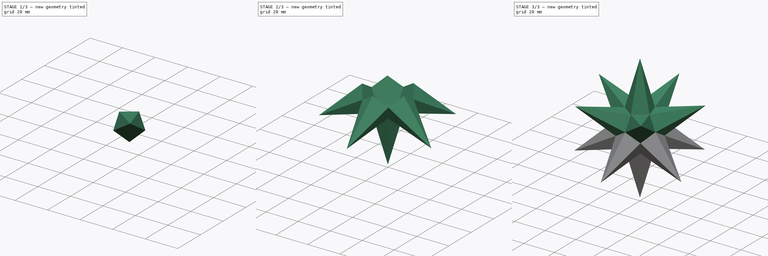
[diagram: build sequence overview — one tinted view per stage of 3, left to right]
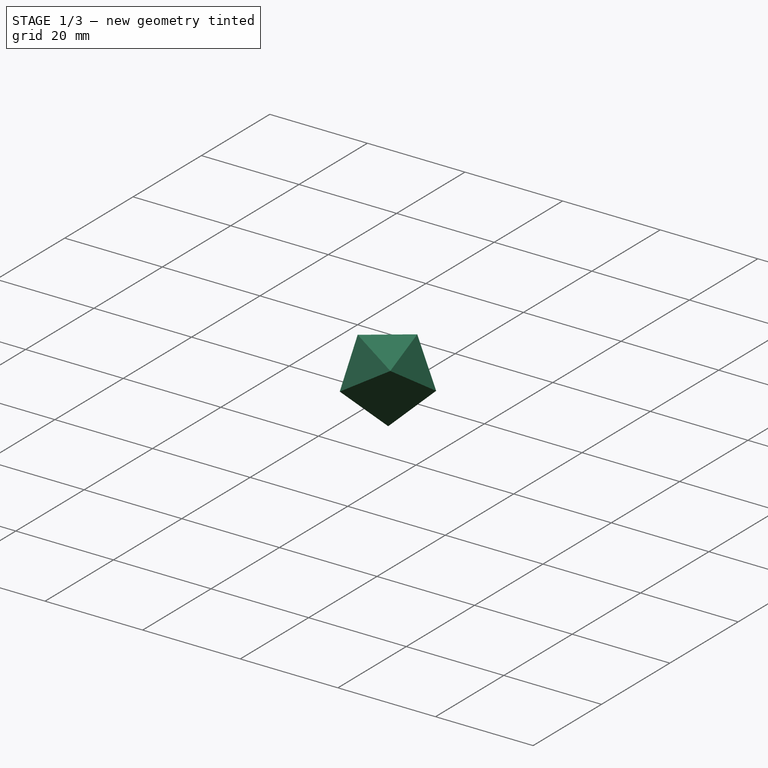
[diagram: stage 1 of 3 — iso view after this stage's code; geometry added in this stage tinted green]
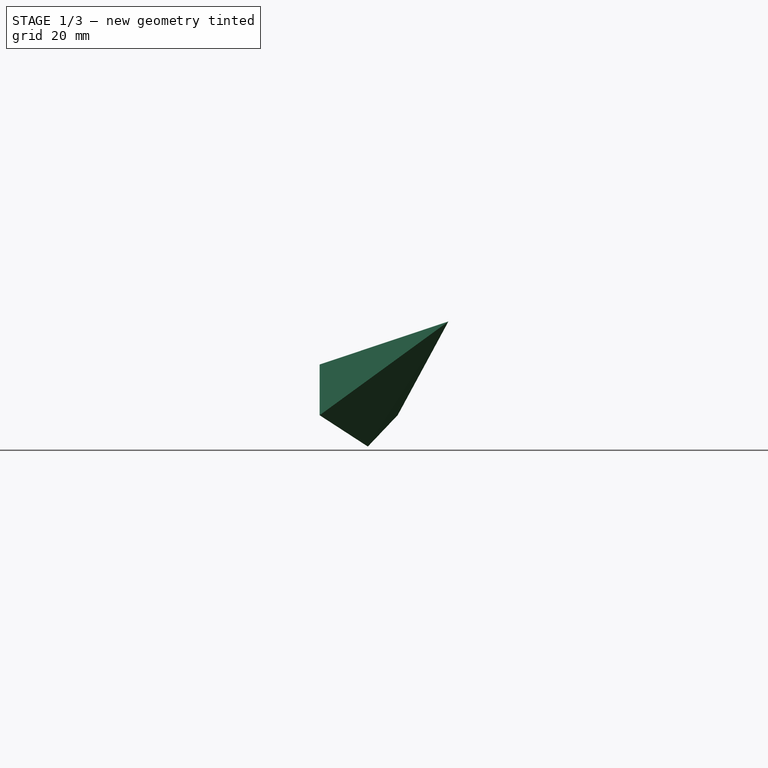
[diagram: stage 1 of 3 — front view after this stage's code; geometry added in this stage tinted green]
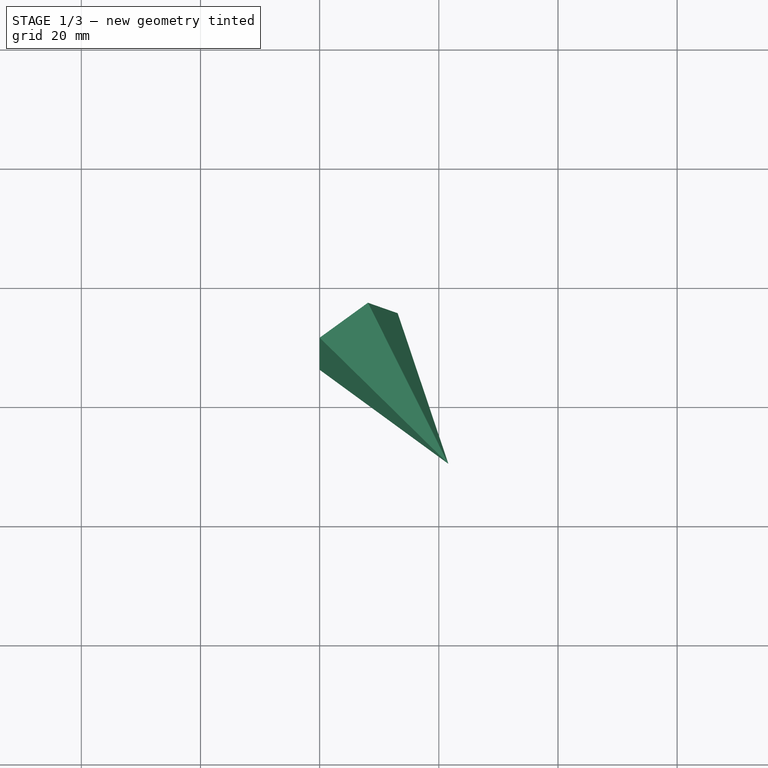
[diagram: stage 1 of 3 — top view after this stage's code; geometry added in this stage tinted green]
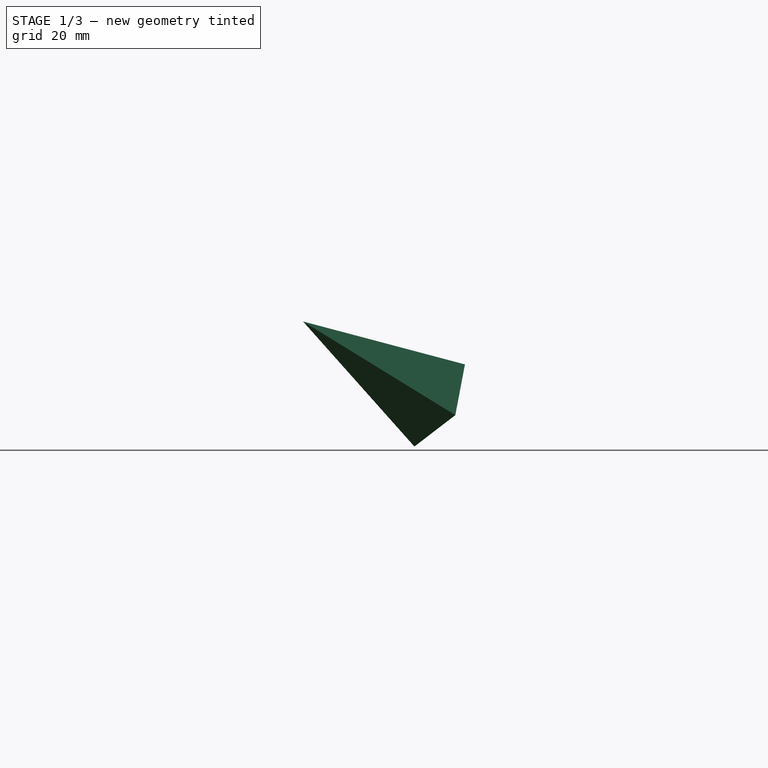
[diagram: stage 1 of 3 — right view after this stage's code; geometry added in this stage tinted green]
FCSTD DOCUMENT  (FreeCAD 0.18R13516 (Git))
Label: ESTRELA DODECAEDRA
License: All rights reserved
LicenseURL: http://en.wikipedia.org/wiki/All_rights_reserved
objects: Part::FeaturePython×4, Part::Compound×2, Sketcher::SketchObject×1, PartDesign::Body×1, Part::Vertex×1, Part::Loft×1
note: 10 computed .brp shape members not serialized (recipe doc carries the construction recipe); baked Part::Feature solids carry a one-line shape summary decoded from their .brp

FEATURE [Sketcher::SketchObject] Sketch
  MapMode = 5
  Support = -> [XY_Plane]
  sketch-geometry (6):
    g0: LineSegment StartX=0 StartY=8.50651 StartZ=0 EndX=-8.09017 EndY=2.62866 EndZ=0
    g1: LineSegment StartX=-8.09017 StartY=2.62866 StartZ=0 EndX=-5 EndY=-6.88191 EndZ=0
    g2: LineSegment StartX=-5 StartY=-6.88191 StartZ=0 EndX=5 EndY=-6.88191 EndZ=0
    g3: LineSegment StartX=5 StartY=-6.88191 StartZ=0 EndX=8.09017 EndY=2.62866 EndZ=0
    g4: LineSegment StartX=8.09017 StartY=2.62866 StartZ=0 EndX=0 EndY=8.50651 EndZ=0
    g5: Circle [constr] CenterX=0 CenterY=0 CenterZ=0 NormalX=0 NormalY=0 NormalZ=1 AngleXU=0 Radius=8.50651
  constraints (14):
    c: Coincident(g0,g1)
    c: Coincident(g1,g2)
    c: Coincident(g2,g3)
    c: Coincident(g3,g4)
    c: Coincident(g4,g0)
    c: Equal(g0, g1-g4) x4
    c: PointOnObject(g0,g5)
    c: PointOnObject(g1,g5)
    c: PointOnObject(g2,g5)
    c: PointOnObject(g3,g5)
    c: PointOnObject(g4,g5)
    c: Coincident(g5,g-1)
    c: PointOnObject(g4,g-2)
    c: DistanceX(g2,g2) = 10
FEATURE [PartDesign::Body] Body
  Group = -> [Sketch]
  Origin = -> Origin
FEATURE [Part::Vertex] Vertex
  AttacherType = Attacher::AttachEngine3D
  X = 0
  Y = 0
  Z = 30
FEATURE [Part::Loft] Loft
  Closed = false
  MaxDegree = 5
  Placement = pos=(-0.0138082,0.0190054,22.26) rot=(0,0,-1;1.88496rad)
  Ruled = true
  Sections = -> [Sketch,Vertex]
  Solid = true
FEATURE [Part::FeaturePython] Clone  label="Loft001"  # Draft clone (typed FeaturePython)
  AttacherType = Attacher::AttachEngine3D
  Fuse = false
  Objects = -> [Loft]
  Placement = pos=(5.85668,-8.06718,16.115) rot=(0.725413,-0.00108,0.688313;1.62424rad)
  Scale = (1,1,1)
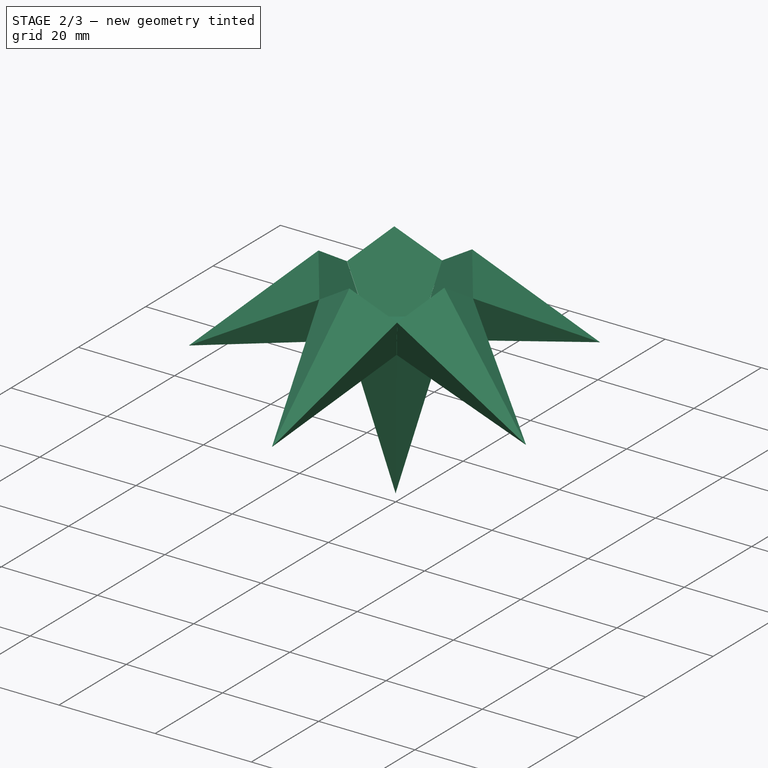
[diagram: stage 2 of 3 — iso view after this stage's code; geometry added in this stage tinted green]
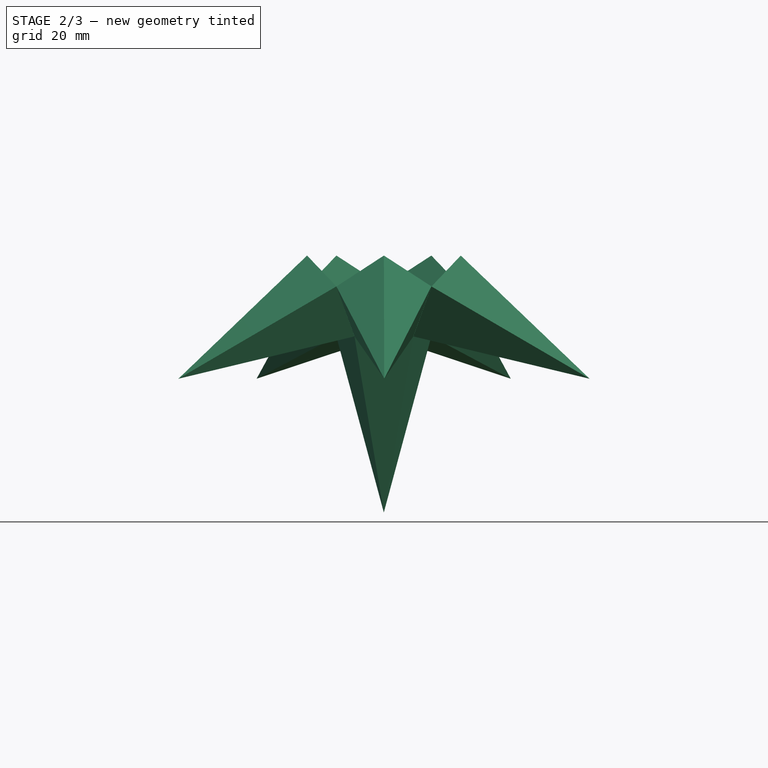
[diagram: stage 2 of 3 — front view after this stage's code; geometry added in this stage tinted green]
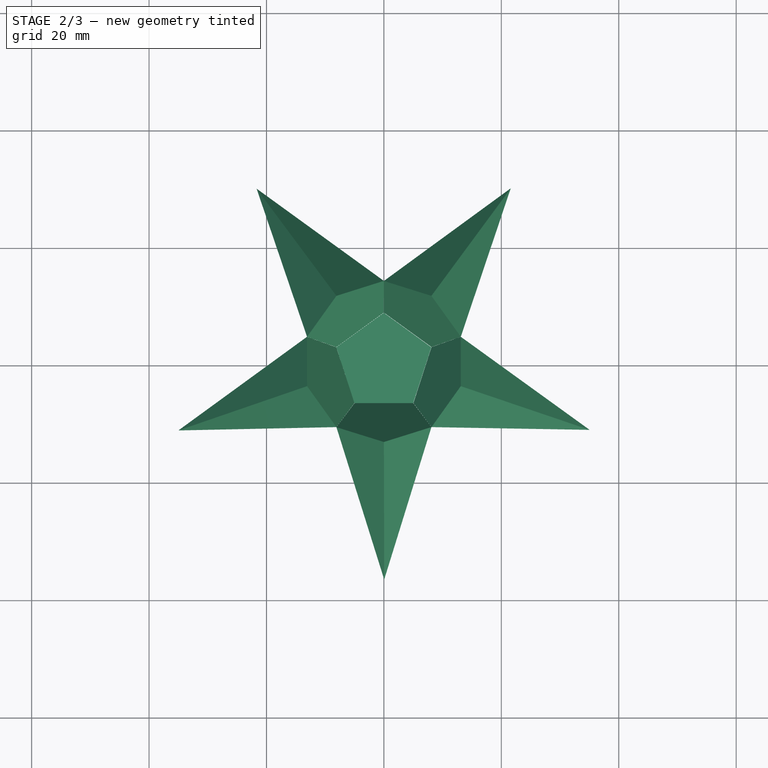
[diagram: stage 2 of 3 — top view after this stage's code; geometry added in this stage tinted green]
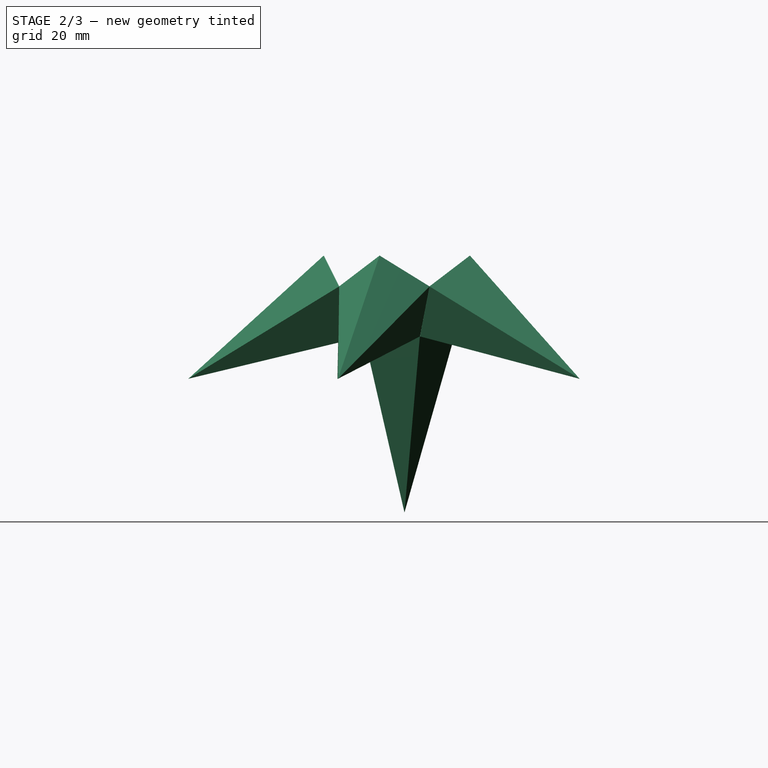
[diagram: stage 2 of 3 — right view after this stage's code; geometry added in this stage tinted green]
FEATURE [Part::FeaturePython] Array  # Draft array (typed FeaturePython)
  Angle = 360
  ArrayType = 1
  Axis = (0,0,1)
  Base = -> Clone
  Center = (0,0,0)
  Fuse = false
  IntervalAxis = (0,0,0)
  IntervalX = (1,0,0)
  IntervalY = (0,1,0)
  IntervalZ = (0,0,0)
  NumberPolar = 5
  NumberX = 2
  NumberY = 2
  NumberZ = 1
FEATURE [Part::Compound] Compound
  Links = -> [Loft,Array]
FEATURE [Part::FeaturePython] Clone001  label="Compound001"  # Draft clone (typed FeaturePython)
  AttacherType = Attacher::AttachEngine3D
  Fuse = false
  Objects = -> [Compound]
  Placement = pos=(0,0,22.3) rot=(-1,0,0;3.14159rad)
  Scale = (1,1,1)
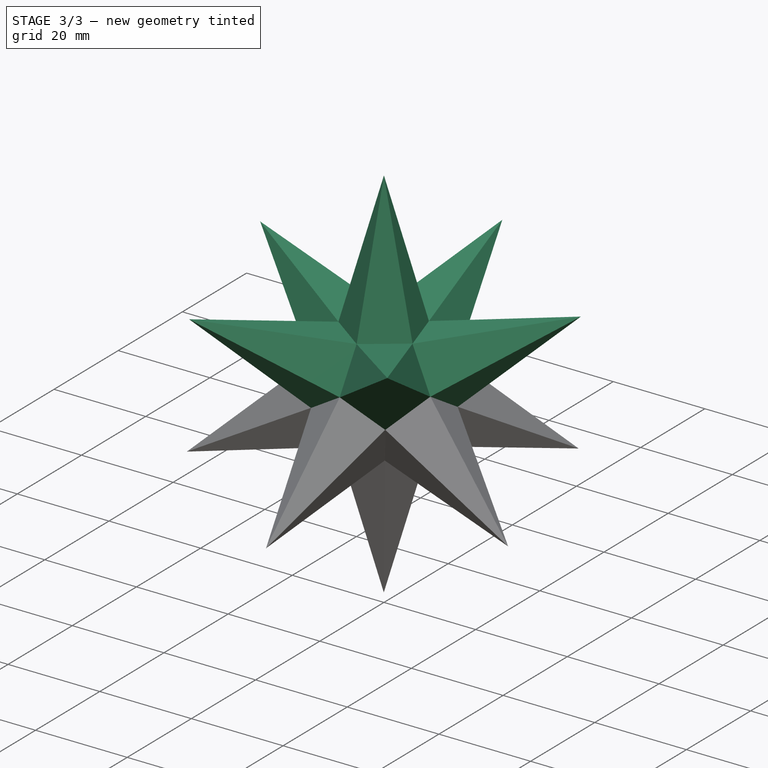
[diagram: stage 3 of 3 — iso view after this stage's code; geometry added in this stage tinted green]
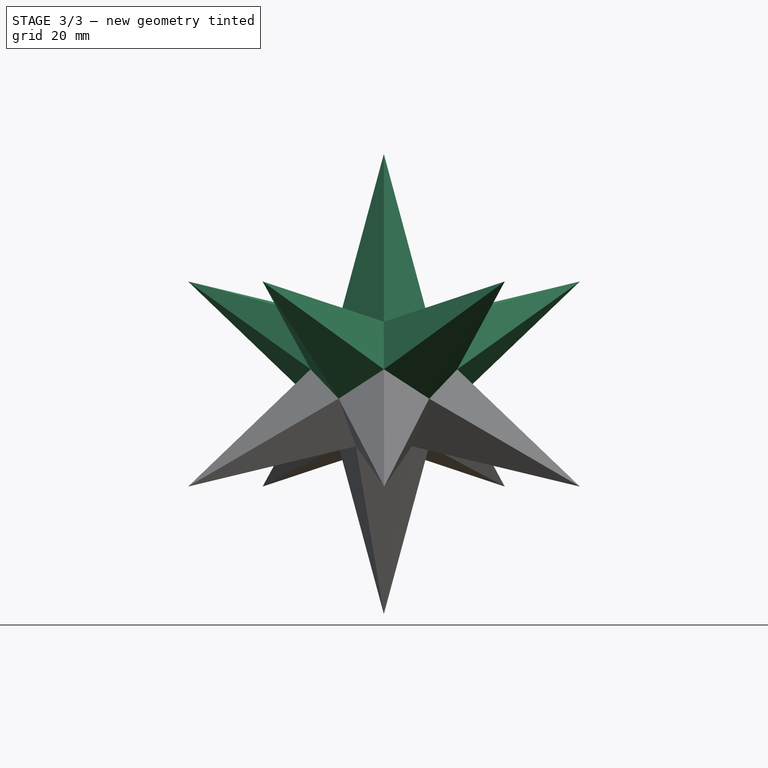
[diagram: stage 3 of 3 — front view after this stage's code; geometry added in this stage tinted green]
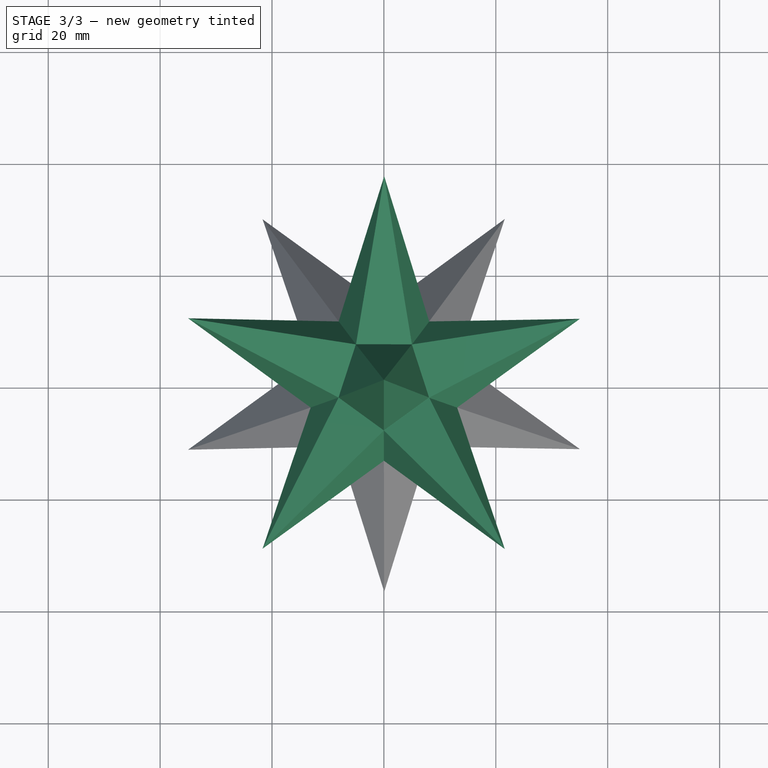
[diagram: stage 3 of 3 — top view after this stage's code; geometry added in this stage tinted green]
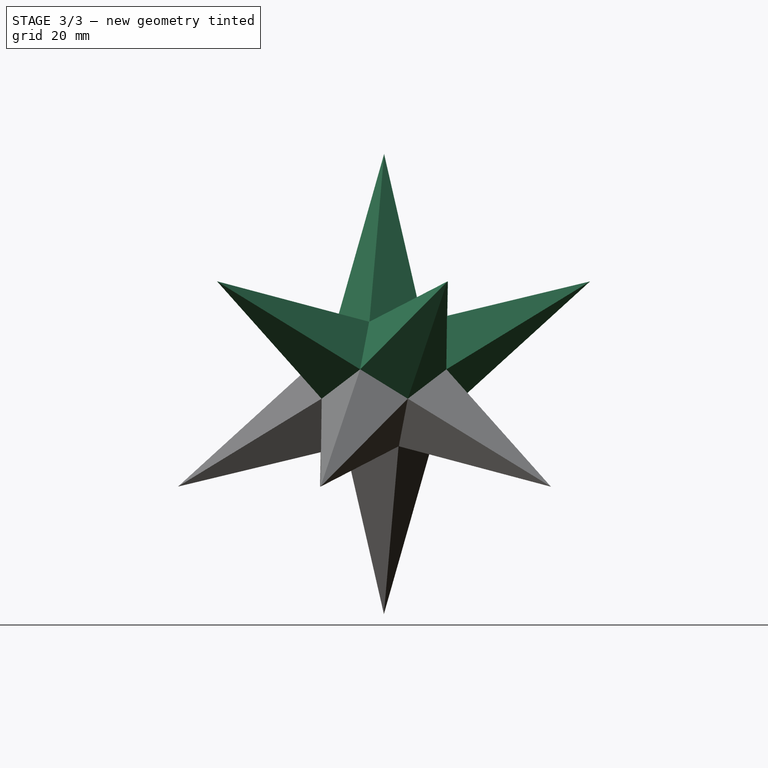
[diagram: stage 3 of 3 — right view after this stage's code; geometry added in this stage tinted green]
FEATURE [Part::FeaturePython] DODECAEDRO_R2_01  # a2plus imported part (geometry in sourceFile) (typed FeaturePython)
  fixedPosition = true
  sourceFile = <userpath>/WORK/FREECAD/69- DODECAEDRO/DODECAEDRO R2.fcstd
  timeLastImport = 1.53521e+09
  updateColors = true
FEATURE [Part::Compound] Compound001  label="Compound002"
  Links = -> [Compound,Clone001]
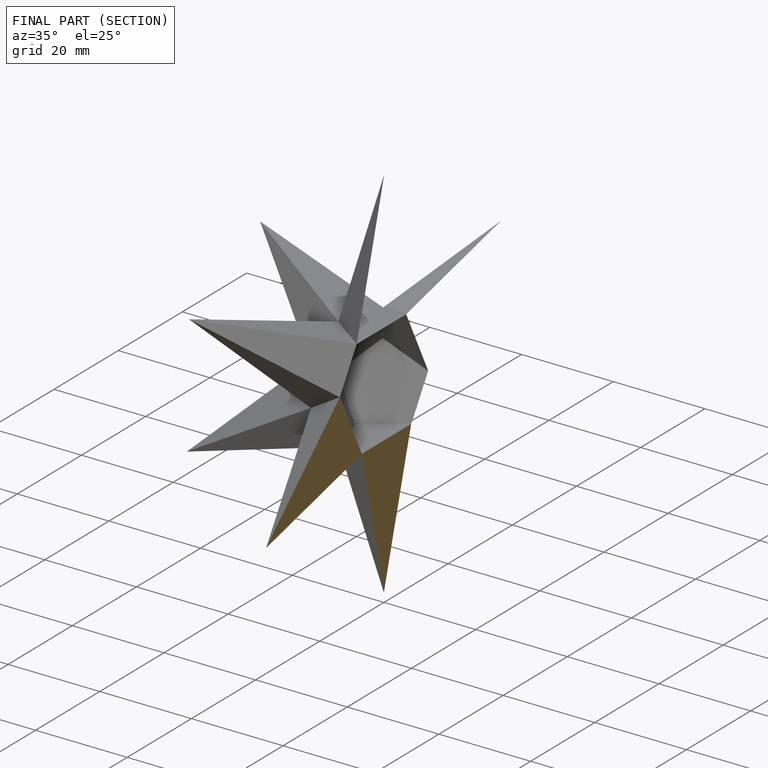
[diagram: finished part — half-section view (interior)]
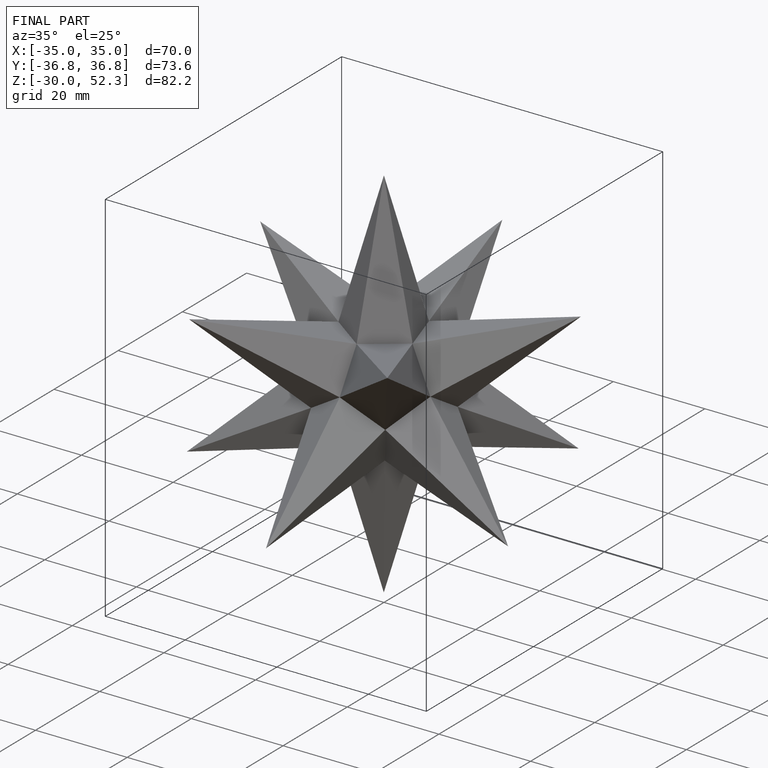
[diagram: finished part — iso view with bounding-box wireframe]
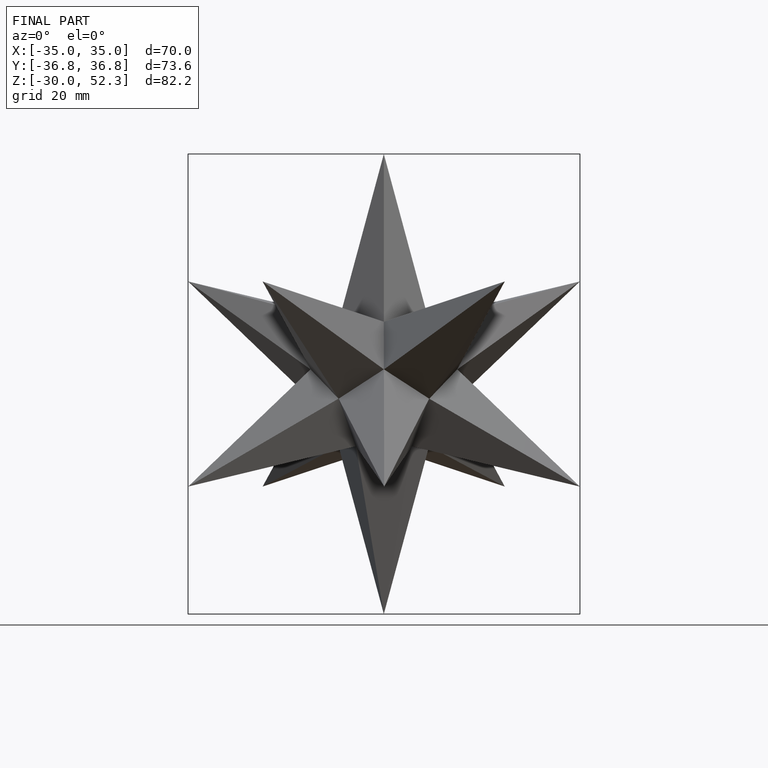
[diagram: finished part — front view with bounding-box wireframe]
